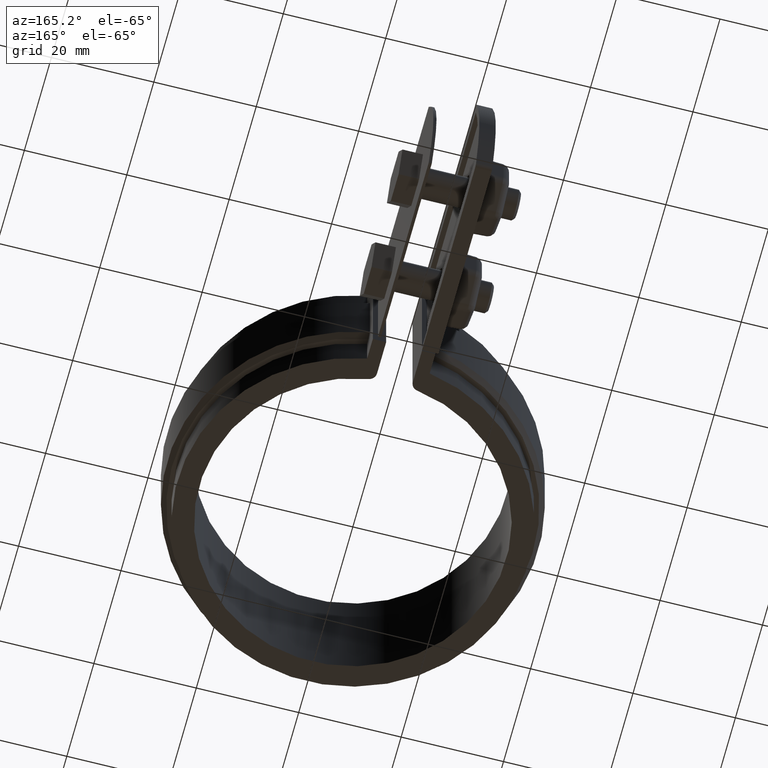
[diagram: clean part render]
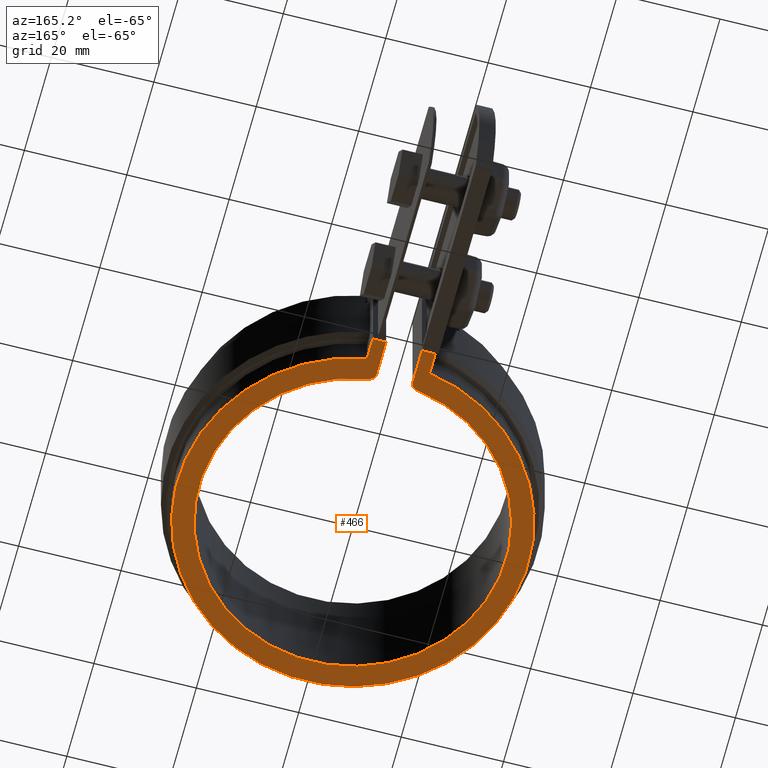
[diagram: same view with one face highlighted and labeled with its STEP entity id]
A machine part, auxiliary view. The second image highlights one B-rep face of the part: STEP entity #466.
In plain terms, the highlighted planar face has unit normal (0, 0, 1).
Its self-contained STEP definition (entity closure, byte-faithful):
#466 = ADVANCED_FACE( '', ( #943 ), #944, .F. );
#943 = FACE_OUTER_BOUND( '', #2051, .T. );
#944 = PLANE( '', #2052 );
#2051 = EDGE_LOOP( '', ( #4646, #4647, #4648, #4649, #4650, #4651, #4652, #4653, #4654, #4655 ) );
#2052 = AXIS2_PLACEMENT_3D( '', #4656, #4657, #4658 );
#4646 = ORIENTED_EDGE( '', *, *, #7143, .F. );
#4647 = ORIENTED_EDGE( '', *, *, #7114, .F. );
#4648 = ORIENTED_EDGE( '', *, *, #7097, .F. );
#4649 = ORIENTED_EDGE( '', *, *, #6954, .F. );
#4650 = ORIENTED_EDGE( '', *, *, #6964, .F. );
#4651 = ORIENTED_EDGE( '', *, *, #7144, .F. );
#4652 = ORIENTED_EDGE( '', *, *, #7145, .T. );
#4653 = ORIENTED_EDGE( '', *, *, #7112, .T. );
#4654 = ORIENTED_EDGE( '', *, *, #7107, .T. );
#4655 = ORIENTED_EDGE( '', *, *, #7146, .F. );
#4656 = CARTESIAN_POINT( '', ( 0.000000000000000, 0.000000000000000, -26.5000000000000 ) );
#4657 = DIRECTION( '', ( 0.000000000000000, 0.000000000000000, 1.00000000000000 ) );
#4658 = DIRECTION( '', ( -1.00000000000000, 6.07153216591882E-017, 0.000000000000000 ) );
#6954 = EDGE_CURVE( '', #7997, #7999, #8000, .T. );
#6964 = EDGE_CURVE( '', #8016, #7997, #8018, .T. );
#7097 = EDGE_CURVE( '', #7999, #8247, #8248, .T. );
#7107 = EDGE_CURVE( '', #8265, #8266, #8267, .T. );
#7112 = EDGE_CURVE( '', #8275, #8265, #8276, .F. );
#7114 = EDGE_CURVE( '', #8247, #8278, #8279, .T. );
#7143 = EDGE_CURVE( '', #8278, #8320, #8321, .T. );
#7144 = EDGE_CURVE( '', #8322, #8016, #8323, .T. );
#7145 = EDGE_CURVE( '', #8322, #8275, #8324, .T. );
#7146 = EDGE_CURVE( '', #8320, #8266, #8325, .T. );
#7997 = VERTEX_POINT( '', #10568 );
#7999 = VERTEX_POINT( '', #10571 );
#8000 = LINE( '', #10572, #10573 );
#8016 = VERTEX_POINT( '', #10601 );
#8018 = LINE( '', #10604, #10605 );
#8247 = VERTEX_POINT( '', #11832 );
#8248 = CIRCLE( '', #11833, 34.2450000000000 );
#8265 = VERTEX_POINT( '', #11856 );
#8266 = VERTEX_POINT( '', #11857 );
#8267 = CIRCLE( '', #11858, 1.50000000000000 );
#8275 = VERTEX_POINT( '', #11868 );
#8276 = CIRCLE( '', #11869, 30.0000000000000 );
#8278 = VERTEX_POINT( '', #11872 );
#8279 = LINE( '', #11873, #11874 );
#8320 = VERTEX_POINT( '', #11936 );
#8321 = LINE( '', #11937, #11938 );
#8322 = VERTEX_POINT( '', #11939 );
#8323 = LINE( '', #11940, #11941 );
#8324 = CIRCLE( '', #11942, 1.50000000000000 );
#8325 = LINE( '', #11943, #11944 );
#10568 = CARTESIAN_POINT( '', ( -6.10000000000002, 37.8989738519314, -26.5000000000000 ) );
#10571 = CARTESIAN_POINT( '', ( -6.10000000000002, 33.6973296419761, -26.5000000000000 ) );
#10572 = CARTESIAN_POINT( '', ( -6.10000000000002, 37.9500000000000, -26.5000000000000 ) );
#10573 = VECTOR( '', #13629, 1000.00000000000 );
#10601 = CARTESIAN_POINT( '', ( -3.49999999999999, 37.8989738519314, -26.5000000000000 ) );
#10604 = CARTESIAN_POINT( '', ( 0.000000000000000, 37.8989738519314, -26.5000000000000 ) );
#10605 = VECTOR( '', #13637, 1000.00000000000 );
#11832 = CARTESIAN_POINT( '', ( 6.09999999999995, 33.6973296419761, -26.5000000000000 ) );
#11833 = AXIS2_PLACEMENT_3D( '', #13770, #13771, #13772 );
#11856 = CARTESIAN_POINT( '', ( 4.76190476190476, 29.6196600763504, -26.5000000000000 ) );
#11857 = CARTESIAN_POINT( '', ( 3.49999999999999, 31.1006430801680, -26.5000000000000 ) );
#11858 = AXIS2_PLACEMENT_3D( '', #13791, #13792, #13793 );
#11868 = CARTESIAN_POINT( '', ( -4.76190476190476, 29.6196600763504, -26.5000000000000 ) );
#11869 = AXIS2_PLACEMENT_3D( '', #13802, #13803, #13804 );
#11872 = CARTESIAN_POINT( '', ( 6.09999999999996, 37.8989738519314, -26.5000000000000 ) );
#11873 = CARTESIAN_POINT( '', ( 6.09999999999998, 33.6973296419761, -26.5000000000000 ) );
#11874 = VECTOR( '', #13806, 1000.00000000000 );
#11936 = CARTESIAN_POINT( '', ( 3.50000000000000, 37.8989738519314, -26.5000000000000 ) );
#11937 = CARTESIAN_POINT( '', ( 0.000000000000000, 37.8989738519314, -26.5000000000000 ) );
#11938 = VECTOR( '', #13855, 1000.00000000000 );
#11939 = CARTESIAN_POINT( '', ( -3.49999999999999, 31.1006430801680, -26.5000000000000 ) );
#11940 = CARTESIAN_POINT( '', ( -3.49999999999999, 29.7900994459569, -26.5000000000000 ) );
#11941 = VECTOR( '', #13856, 1000.00000000000 );
#11942 = AXIS2_PLACEMENT_3D( '', #13857, #13858, #13859 );
#11943 = CARTESIAN_POINT( '', ( 3.50000000000000, 37.9500000000000, -26.5000000000000 ) );
#11944 = VECTOR( '', #13860, 1000.00000000000 );
#13629 = DIRECTION( '', ( -6.07153216591882E-017, -1.00000000000000, 0.000000000000000 ) );
#13637 = DIRECTION( '', ( -1.00000000000000, 0.000000000000000, 0.000000000000000 ) );
#13770 = CARTESIAN_POINT( '', ( 0.000000000000000, 0.000000000000000, -26.5000000000000 ) );
#13771 = DIRECTION( '', ( 0.000000000000000, 0.000000000000000, 1.00000000000000 ) );
#13772 = DIRECTION( '', ( 1.00000000000000, -6.07153216591883E-017, 0.000000000000000 ) );
#13791 = CARTESIAN_POINT( '', ( 4.99999999999999, 31.1006430801680, -26.5000000000000 ) );
#13792 = DIRECTION( '', ( 0.000000000000000, 0.000000000000000, -1.00000000000000 ) );
#13793 = DIRECTION( '', ( -1.00000000000000, 0.000000000000000, 0.000000000000000 ) );
#13802 = CARTESIAN_POINT( '', ( 0.000000000000000, 0.000000000000000, -26.5000000000000 ) );
#13803 = DIRECTION( '', ( 0.000000000000000, 0.000000000000000, -1.00000000000000 ) );
#13804 = DIRECTION( '', ( -1.00000000000000, 0.000000000000000, 0.000000000000000 ) );
#13806 = DIRECTION( '', ( 6.07153216591882E-017, 1.00000000000000, 0.000000000000000 ) );
#13855 = DIRECTION( '', ( -1.00000000000000, 0.000000000000000, 0.000000000000000 ) );
#13856 = DIRECTION( '', ( 6.07153216591882E-017, 1.00000000000000, 0.000000000000000 ) );
#13857 = CARTESIAN_POINT( '', ( -4.99999999999999, 31.1006430801680, -26.5000000000000 ) );
#13858 = DIRECTION( '', ( 0.000000000000000, 0.000000000000000, -1.00000000000000 ) );
#13859 = DIRECTION( '', ( -1.00000000000000, 0.000000000000000, 0.000000000000000 ) );
#13860 = DIRECTION( '', ( -6.07153216591882E-017, -1.00000000000000, 0.000000000000000 ) );